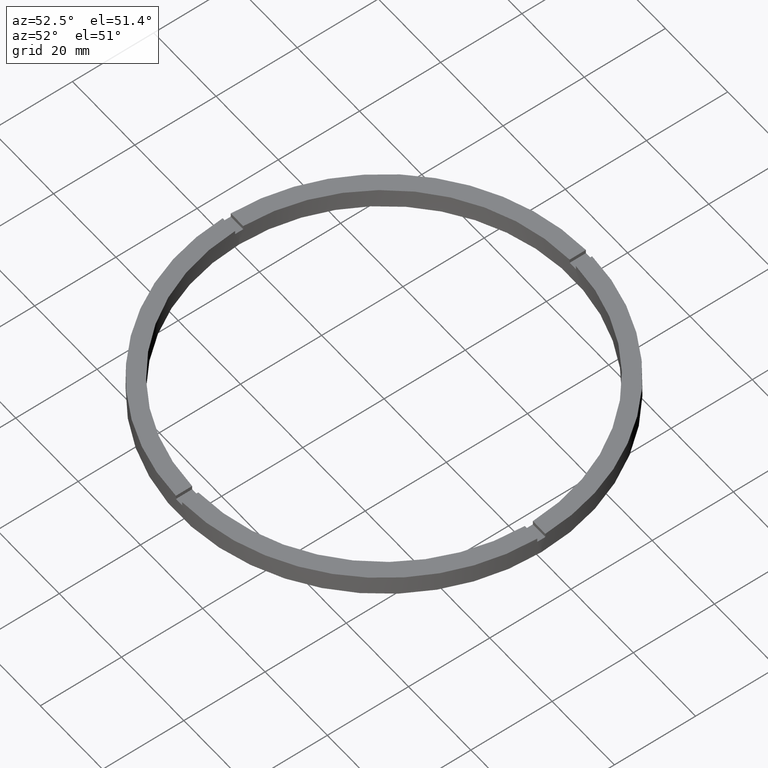
[diagram: clean part render]
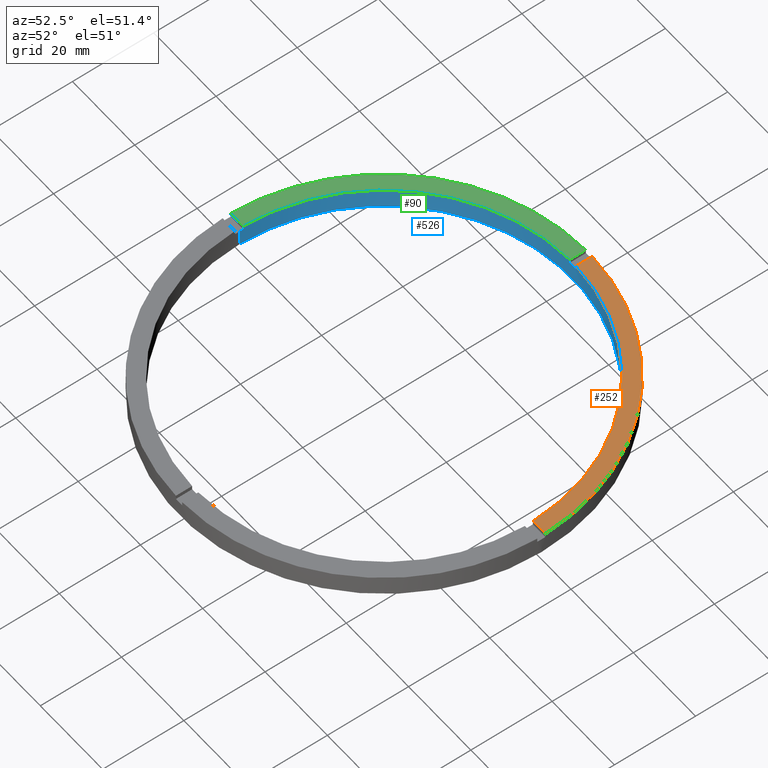
[diagram: same view with three faces highlighted in distinct colors, each labeled with its STEP entity id]
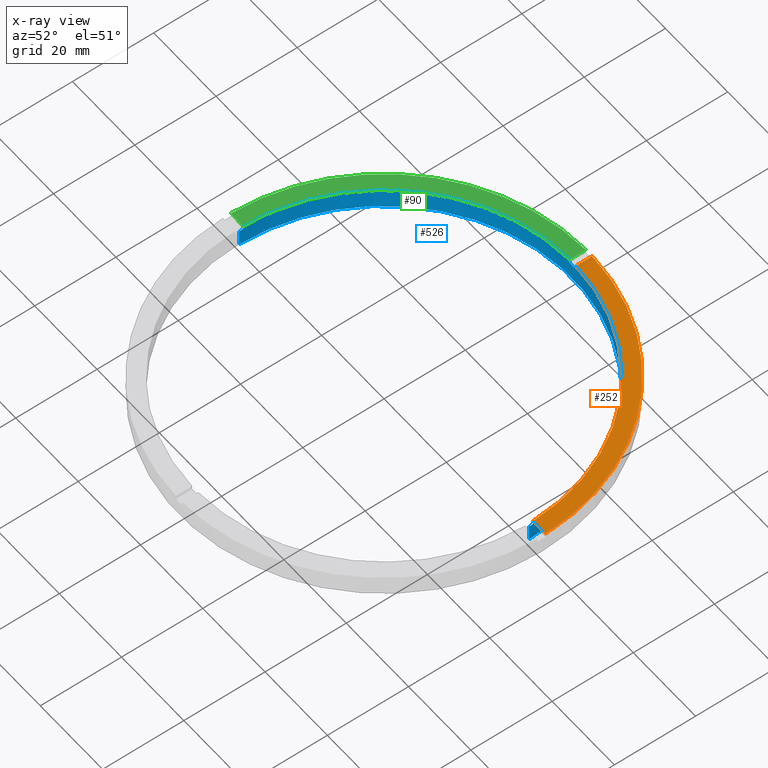
[diagram: x-ray of the same camera — body ghosted, the three highlighted faces saturated]
A machine part, auxiliary view with three faces highlighted in distinct colors.
The next image is the same camera in x-ray (body ghosted, the three faces saturated) — at least one of them is partly hidden behind the body in this view.
Their STEP definitions:

[orange] entity #252 — the highlighted planar face has unit normal (0, 0, 1).
#21 = DIRECTION ( 'NONE',  ( 1.000000000000000000, 0.000000000000000000, 0.000000000000000000 ) ) ;
#94 = ORIENTED_EDGE ( 'NONE', *, *, #696, .F. ) ;
#105 = VERTEX_POINT ( 'NONE', #408 ) ;
#115 = VERTEX_POINT ( 'NONE', #472 ) ;
#122 = CARTESIAN_POINT ( 'NONE',  ( 0.9999999999999731326, 40.50000000000000000, 5.000000000000000000 ) ) ;
#147 = DIRECTION ( 'NONE',  ( 0.000000000000000000, 0.000000000000000000, 1.000000000000000000 ) ) ;
#154 = CARTESIAN_POINT ( 'NONE',  ( 40.49999999999999289, 0.9999999999998443467, 5.000000000000000000 ) ) ;
#160 = EDGE_CURVE ( 'NONE', #105, #431, #460, .T. ) ;
#178 = VECTOR ( 'NONE', #656, 1000.000000000000000 ) ;
#199 = AXIS2_PLACEMENT_3D ( 'NONE', #668, #549, #585 ) ;
#223 = DIRECTION ( 'NONE',  ( 1.000000000000000000, 0.000000000000000000, -0.000000000000000000 ) ) ;
#224 = DIRECTION ( 'NONE',  ( -1.000000000000000000, -6.505213034913025371E-17, -0.000000000000000000 ) ) ;
#228 = LINE ( 'NONE', #154, #746 ) ;
#231 = FACE_OUTER_BOUND ( 'NONE', #395, .T. ) ;
#238 = EDGE_CURVE ( 'NONE', #105, #376, #228, .T. ) ;
#252 = ADVANCED_FACE ( 'NONE', ( #231 ), #552, .T. ) ;
#265 = EDGE_CURVE ( 'NONE', #376, #115, #756, .T. ) ;
#317 = AXIS2_PLACEMENT_3D ( 'NONE', #608, #147, #223 ) ;
#332 = AXIS2_PLACEMENT_3D ( 'NONE', #446, #762, #21 ) ;
#364 = ORIENTED_EDGE ( 'NONE', *, *, #160, .T. ) ;
#376 = VERTEX_POINT ( 'NONE', #719 ) ;
#395 = EDGE_LOOP ( 'NONE', ( #94, #636, #638, #364 ) ) ;
#408 = CARTESIAN_POINT ( 'NONE',  ( 50.49009803912051098, 0.9999999999998450129, 5.000000000000000000 ) ) ;
#431 = VERTEX_POINT ( 'NONE', #712 ) ;
#446 = CARTESIAN_POINT ( 'NONE',  ( 0.000000000000000000, 0.000000000000000000, 5.000000000000000000 ) ) ;
#460 = CIRCLE ( 'NONE', #199, 50.50000000000000000 ) ;
#472 = CARTESIAN_POINT ( 'NONE',  ( 0.9999999999999731326, 46.48924606831132422, 5.000000000000000000 ) ) ;
#549 = DIRECTION ( 'NONE',  ( 0.000000000000000000, 0.000000000000000000, 1.000000000000000000 ) ) ;
#552 = PLANE ( 'NONE',  #317 ) ;
#585 = DIRECTION ( 'NONE',  ( 1.000000000000000000, 0.000000000000000000, 0.000000000000000000 ) ) ;
#608 = CARTESIAN_POINT ( 'NONE',  ( 0.000000000000000000, 0.000000000000000000, 5.000000000000000000 ) ) ;
#636 = ORIENTED_EDGE ( 'NONE', *, *, #265, .F. ) ;
#638 = ORIENTED_EDGE ( 'NONE', *, *, #238, .F. ) ;
#656 = DIRECTION ( 'NONE',  ( 0.000000000000000000, 1.000000000000000000, 0.000000000000000000 ) ) ;
#668 = CARTESIAN_POINT ( 'NONE',  ( 0.000000000000000000, 0.000000000000000000, 5.000000000000000000 ) ) ;
#683 = LINE ( 'NONE', #122, #178 ) ;
#696 = EDGE_CURVE ( 'NONE', #115, #431, #683, .T. ) ;
#712 = CARTESIAN_POINT ( 'NONE',  ( 0.9999999999999731326, 50.49009803912050387, 5.000000000000000000 ) ) ;
#719 = CARTESIAN_POINT ( 'NONE',  ( 46.48924606831132422, 0.9999999999998447908, 5.000000000000000000 ) ) ;
#746 = VECTOR ( 'NONE', #224, 1000.000000000000000 ) ;
#756 = CIRCLE ( 'NONE', #332, 46.50000000000000000 ) ;
#762 = DIRECTION ( 'NONE',  ( 0.000000000000000000, 0.000000000000000000, 1.000000000000000000 ) ) ;

[blue] entity #526 — the highlighted cylindrical surface (partial cylindrical patch) has radius 46.5 mm, axis along (-0, -0, -1).
#3 = EDGE_CURVE ( 'NONE', #343, #644, #392, .T. ) ;
#6 = EDGE_CURVE ( 'NONE', #727, #360, #642, .T. ) ;
#7 = DIRECTION ( 'NONE',  ( 0.000000000000000000, -0.000000000000000000, 1.000000000000000000 ) ) ;
#14 = DIRECTION ( 'NONE',  ( 1.000000000000000000, 0.000000000000000000, 0.000000000000000000 ) ) ;
#21 = DIRECTION ( 'NONE',  ( 1.000000000000000000, 0.000000000000000000, 0.000000000000000000 ) ) ;
#33 = ORIENTED_EDGE ( 'NONE', *, *, #669, .F. ) ;
#39 = CARTESIAN_POINT ( 'NONE',  ( 46.50000000000000000, 5.694607616035192278E-15, 5.000000000000000000 ) ) ;
#43 = EDGE_CURVE ( 'NONE', #120, #441, #402, .T. ) ;
#49 = CARTESIAN_POINT ( 'NONE',  ( 46.48924606831132422, 0.9999999999998447908, 4.000000000000000000 ) ) ;
#52 = EDGE_CURVE ( 'NONE', #100, #346, #403, .T. ) ;
#59 = DIRECTION ( 'NONE',  ( 1.000000000000000000, 0.000000000000000000, 0.000000000000000000 ) ) ;
#70 = EDGE_CURVE ( 'NONE', #346, #441, #405, .T. ) ;
#91 = ORIENTED_EDGE ( 'NONE', *, *, #6, .T. ) ;
#100 = VERTEX_POINT ( 'NONE', #326 ) ;
#113 = ORIENTED_EDGE ( 'NONE', *, *, #508, .F. ) ;
#115 = VERTEX_POINT ( 'NONE', #472 ) ;
#117 = DIRECTION ( 'NONE',  ( 1.000000000000000000, 0.000000000000000000, 0.000000000000000000 ) ) ;
#120 = VERTEX_POINT ( 'NONE', #447 ) ;
#126 = ORIENTED_EDGE ( 'NONE', *, *, #43, .F. ) ;
#135 = DIRECTION ( 'NONE',  ( 1.000000000000000000, 0.000000000000000000, 0.000000000000000000 ) ) ;
#153 = DIRECTION ( 'NONE',  ( -0.000000000000000000, -0.000000000000000000, -1.000000000000000000 ) ) ;
#172 = LINE ( 'NONE', #536, #701 ) ;
#175 = EDGE_CURVE ( 'NONE', #371, #637, #485, .T. ) ;
#181 = CARTESIAN_POINT ( 'NONE',  ( 0.9999999999999731326, 46.48924606831132422, 5.000000000000000000 ) ) ;
#191 = CARTESIAN_POINT ( 'NONE',  ( -46.48924606831132422, 0.9999999999999690248, 5.000000000000000000 ) ) ;
#200 = CARTESIAN_POINT ( 'NONE',  ( -46.50000000000000000, 0.000000000000000000, 5.000000000000000000 ) ) ;
#234 = DIRECTION ( 'NONE',  ( -0.000000000000000000, -0.000000000000000000, -1.000000000000000000 ) ) ;
#256 = LINE ( 'NONE', #39, #763 ) ;
#261 = CARTESIAN_POINT ( 'NONE',  ( -1.000000000000026867, 46.48924606831132422, 5.000000000000000000 ) ) ;
#262 = DIRECTION ( 'NONE',  ( 0.000000000000000000, 0.000000000000000000, 1.000000000000000000 ) ) ;
#265 = EDGE_CURVE ( 'NONE', #376, #115, #756, .T. ) ;
#269 = DIRECTION ( 'NONE',  ( 0.000000000000000000, 0.000000000000000000, 1.000000000000000000 ) ) ;
#289 = CARTESIAN_POINT ( 'NONE',  ( -46.50000000000000000, 0.000000000000000000, 0.000000000000000000 ) ) ;
#294 = DIRECTION ( 'NONE',  ( 0.000000000000000000, 0.000000000000000000, 1.000000000000000000 ) ) ;
#302 = ORIENTED_EDGE ( 'NONE', *, *, #52, .T. ) ;
#326 = CARTESIAN_POINT ( 'NONE',  ( -46.48924606831132422, 0.9999999999999690248, 4.000000000000000000 ) ) ;
#332 = AXIS2_PLACEMENT_3D ( 'NONE', #446, #762, #21 ) ;
#343 = VERTEX_POINT ( 'NONE', #783 ) ;
#344 = DIRECTION ( 'NONE',  ( 0.000000000000000000, 0.000000000000000000, 1.000000000000000000 ) ) ;
#346 = VERTEX_POINT ( 'NONE', #654 ) ;
#357 = ORIENTED_EDGE ( 'NONE', *, *, #175, .T. ) ;
#358 = DIRECTION ( 'NONE',  ( -0.000000000000000000, -0.000000000000000000, -1.000000000000000000 ) ) ;
#360 = VERTEX_POINT ( 'NONE', #649 ) ;
#371 = VERTEX_POINT ( 'NONE', #261 ) ;
#373 = CARTESIAN_POINT ( 'NONE',  ( 0.000000000000000000, 0.000000000000000000, 5.000000000000000000 ) ) ;
#376 = VERTEX_POINT ( 'NONE', #719 ) ;
#387 = ORIENTED_EDGE ( 'NONE', *, *, #70, .T. ) ;
#392 = CIRCLE ( 'NONE', #420, 46.50000000000000000 ) ;
#396 = ORIENTED_EDGE ( 'NONE', *, *, #265, .T. ) ;
#402 = CIRCLE ( 'NONE', #478, 46.50000000000000000 ) ;
#403 = CIRCLE ( 'NONE', #576, 46.50000000000000000 ) ;
#405 = LINE ( 'NONE', #200, #650 ) ;
#411 = CARTESIAN_POINT ( 'NONE',  ( -1.000000000000026867, 46.48924606831132422, 5.000000000000000000 ) ) ;
#416 = CARTESIAN_POINT ( 'NONE',  ( 0.000000000000000000, 0.000000000000000000, 0.000000000000000000 ) ) ;
#418 = DIRECTION ( 'NONE',  ( 0.000000000000000000, 0.000000000000000000, 1.000000000000000000 ) ) ;
#420 = AXIS2_PLACEMENT_3D ( 'NONE', #659, #294, #135 ) ;
#421 = DIRECTION ( 'NONE',  ( 1.000000000000000000, 0.000000000000000000, 0.000000000000000000 ) ) ;
#441 = VERTEX_POINT ( 'NONE', #289 ) ;
#446 = CARTESIAN_POINT ( 'NONE',  ( 0.000000000000000000, 0.000000000000000000, 5.000000000000000000 ) ) ;
#447 = CARTESIAN_POINT ( 'NONE',  ( 46.50000000000000000, 5.694607616035192278E-15, 0.000000000000000000 ) ) ;
#450 = EDGE_CURVE ( 'NONE', #371, #360, #491, .T. ) ;
#456 = LINE ( 'NONE', #575, #709 ) ;
#464 = AXIS2_PLACEMENT_3D ( 'NONE', #373, #517, #59 ) ;
#472 = CARTESIAN_POINT ( 'NONE',  ( 0.9999999999999731326, 46.48924606831132422, 5.000000000000000000 ) ) ;
#478 = AXIS2_PLACEMENT_3D ( 'NONE', #416, #344, #14 ) ;
#483 = CARTESIAN_POINT ( 'NONE',  ( 0.000000000000000000, 0.000000000000000000, 5.000000000000000000 ) ) ;
#485 = CIRCLE ( 'NONE', #464, 46.50000000000000000 ) ;
#491 = LINE ( 'NONE', #411, #750 ) ;
#499 = FACE_OUTER_BOUND ( 'NONE', #587, .T. ) ;
#502 = CYLINDRICAL_SURFACE ( 'NONE', #597, 46.50000000000000000 ) ;
#508 = EDGE_CURVE ( 'NONE', #343, #120, #256, .T. ) ;
#509 = VECTOR ( 'NONE', #262, 1000.000000000000000 ) ;
#517 = DIRECTION ( 'NONE',  ( 0.000000000000000000, 0.000000000000000000, 1.000000000000000000 ) ) ;
#520 = AXIS2_PLACEMENT_3D ( 'NONE', #653, #7, #421 ) ;
#521 = DIRECTION ( 'NONE',  ( -0.000000000000000000, -0.000000000000000000, -1.000000000000000000 ) ) ;
#526 = ADVANCED_FACE ( 'NONE', ( #499 ), #502, .F. ) ;
#536 = CARTESIAN_POINT ( 'NONE',  ( -46.48924606831132422, 0.9999999999999690248, 5.000000000000000000 ) ) ;
#537 = CARTESIAN_POINT ( 'NONE',  ( 0.000000000000000000, 0.000000000000000000, 4.000000000000000000 ) ) ;
#541 = CARTESIAN_POINT ( 'NONE',  ( 0.9999999999999731326, 46.48924606831132422, 4.000000000000000000 ) ) ;
#555 = ORIENTED_EDGE ( 'NONE', *, *, #3, .T. ) ;
#556 = DIRECTION ( 'NONE',  ( -1.000000000000000000, 0.000000000000000000, 0.000000000000000000 ) ) ;
#569 = DIRECTION ( 'NONE',  ( -0.000000000000000000, -0.000000000000000000, -1.000000000000000000 ) ) ;
#575 = CARTESIAN_POINT ( 'NONE',  ( 46.48924606831132422, 0.9999999999998447908, 5.000000000000000000 ) ) ;
#576 = AXIS2_PLACEMENT_3D ( 'NONE', #537, #418, #117 ) ;
#587 = EDGE_LOOP ( 'NONE', ( #113, #555, #631, #396, #33, #91, #622, #357, #623, #302, #387, #126 ) ) ;
#597 = AXIS2_PLACEMENT_3D ( 'NONE', #483, #234, #556 ) ;
#622 = ORIENTED_EDGE ( 'NONE', *, *, #450, .F. ) ;
#623 = ORIENTED_EDGE ( 'NONE', *, *, #775, .F. ) ;
#631 = ORIENTED_EDGE ( 'NONE', *, *, #780, .F. ) ;
#637 = VERTEX_POINT ( 'NONE', #191 ) ;
#642 = CIRCLE ( 'NONE', #520, 46.50000000000000000 ) ;
#644 = VERTEX_POINT ( 'NONE', #49 ) ;
#649 = CARTESIAN_POINT ( 'NONE',  ( -1.000000000000026867, 46.48924606831132422, 4.000000000000000000 ) ) ;
#650 = VECTOR ( 'NONE', #358, 1000.000000000000000 ) ;
#653 = CARTESIAN_POINT ( 'NONE',  ( 0.000000000000000000, 0.000000000000000000, 4.000000000000000000 ) ) ;
#654 = CARTESIAN_POINT ( 'NONE',  ( -46.50000000000000000, 0.000000000000000000, 4.000000000000000000 ) ) ;
#659 = CARTESIAN_POINT ( 'NONE',  ( 0.000000000000000000, 0.000000000000000000, 4.000000000000000000 ) ) ;
#669 = EDGE_CURVE ( 'NONE', #727, #115, #767, .T. ) ;
#701 = VECTOR ( 'NONE', #269, 1000.000000000000000 ) ;
#709 = VECTOR ( 'NONE', #153, 1000.000000000000000 ) ;
#719 = CARTESIAN_POINT ( 'NONE',  ( 46.48924606831132422, 0.9999999999998447908, 5.000000000000000000 ) ) ;
#727 = VERTEX_POINT ( 'NONE', #541 ) ;
#750 = VECTOR ( 'NONE', #569, 1000.000000000000000 ) ;
#756 = CIRCLE ( 'NONE', #332, 46.50000000000000000 ) ;
#762 = DIRECTION ( 'NONE',  ( 0.000000000000000000, 0.000000000000000000, 1.000000000000000000 ) ) ;
#763 = VECTOR ( 'NONE', #521, 1000.000000000000000 ) ;
#767 = LINE ( 'NONE', #181, #509 ) ;
#775 = EDGE_CURVE ( 'NONE', #100, #637, #172, .T. ) ;
#780 = EDGE_CURVE ( 'NONE', #376, #644, #456, .T. ) ;
#783 = CARTESIAN_POINT ( 'NONE',  ( 46.50000000000000000, 5.694607616035192278E-15, 4.000000000000000000 ) ) ;

[green] entity #90 — the highlighted planar face has unit normal (0, 0, 1).
#40 = CARTESIAN_POINT ( 'NONE',  ( 0.000000000000000000, 0.000000000000000000, 5.000000000000000000 ) ) ;
#45 = EDGE_CURVE ( 'NONE', #601, #705, #139, .T. ) ;
#59 = DIRECTION ( 'NONE',  ( 1.000000000000000000, 0.000000000000000000, 0.000000000000000000 ) ) ;
#60 = AXIS2_PLACEMENT_3D ( 'NONE', #594, #671, #755 ) ;
#87 = ORIENTED_EDGE ( 'NONE', *, *, #45, .T. ) ;
#90 = ADVANCED_FACE ( 'NONE', ( #190 ), #710, .T. ) ;
#101 = DIRECTION ( 'NONE',  ( -0.000000000000000000, -1.000000000000000000, -0.000000000000000000 ) ) ;
#131 = ORIENTED_EDGE ( 'NONE', *, *, #531, .F. ) ;
#139 = CIRCLE ( 'NONE', #60, 50.50000000000000000 ) ;
#173 = DIRECTION ( 'NONE',  ( 0.000000000000000000, 0.000000000000000000, 1.000000000000000000 ) ) ;
#175 = EDGE_CURVE ( 'NONE', #371, #637, #485, .T. ) ;
#190 = FACE_OUTER_BOUND ( 'NONE', #607, .T. ) ;
#191 = CARTESIAN_POINT ( 'NONE',  ( -46.48924606831132422, 0.9999999999999690248, 5.000000000000000000 ) ) ;
#261 = CARTESIAN_POINT ( 'NONE',  ( -1.000000000000026867, 46.48924606831132422, 5.000000000000000000 ) ) ;
#282 = CARTESIAN_POINT ( 'NONE',  ( -40.50000000000019185, 0.9999999999999703570, 5.000000000000000000 ) ) ;
#331 = ORIENTED_EDGE ( 'NONE', *, *, #474, .F. ) ;
#371 = VERTEX_POINT ( 'NONE', #261 ) ;
#373 = CARTESIAN_POINT ( 'NONE',  ( 0.000000000000000000, 0.000000000000000000, 5.000000000000000000 ) ) ;
#407 = CARTESIAN_POINT ( 'NONE',  ( -1.000000000000026867, 50.49009803912050387, 5.000000000000000000 ) ) ;
#464 = AXIS2_PLACEMENT_3D ( 'NONE', #373, #517, #59 ) ;
#474 = EDGE_CURVE ( 'NONE', #601, #371, #759, .T. ) ;
#485 = CIRCLE ( 'NONE', #464, 46.50000000000000000 ) ;
#486 = DIRECTION ( 'NONE',  ( 1.000000000000000000, 0.000000000000000000, -0.000000000000000000 ) ) ;
#505 = VECTOR ( 'NONE', #620, 1000.000000000000000 ) ;
#511 = LINE ( 'NONE', #282, #505 ) ;
#517 = DIRECTION ( 'NONE',  ( 0.000000000000000000, 0.000000000000000000, 1.000000000000000000 ) ) ;
#531 = EDGE_CURVE ( 'NONE', #637, #705, #511, .T. ) ;
#572 = CARTESIAN_POINT ( 'NONE',  ( -50.49009803912050387, 0.9999999999999683586, 5.000000000000000000 ) ) ;
#594 = CARTESIAN_POINT ( 'NONE',  ( 0.000000000000000000, 0.000000000000000000, 5.000000000000000000 ) ) ;
#601 = VERTEX_POINT ( 'NONE', #407 ) ;
#607 = EDGE_LOOP ( 'NONE', ( #331, #87, #131, #628 ) ) ;
#620 = DIRECTION ( 'NONE',  ( -1.000000000000000000, -1.951563910473907735E-16, 0.000000000000000000 ) ) ;
#628 = ORIENTED_EDGE ( 'NONE', *, *, #175, .F. ) ;
#637 = VERTEX_POINT ( 'NONE', #191 ) ;
#647 = CARTESIAN_POINT ( 'NONE',  ( -1.000000000000026867, 40.50000000000000000, 5.000000000000000000 ) ) ;
#671 = DIRECTION ( 'NONE',  ( 0.000000000000000000, 0.000000000000000000, 1.000000000000000000 ) ) ;
#675 = AXIS2_PLACEMENT_3D ( 'NONE', #40, #173, #486 ) ;
#705 = VERTEX_POINT ( 'NONE', #572 ) ;
#710 = PLANE ( 'NONE',  #675 ) ;
#755 = DIRECTION ( 'NONE',  ( 1.000000000000000000, 0.000000000000000000, 0.000000000000000000 ) ) ;
#758 = VECTOR ( 'NONE', #101, 1000.000000000000000 ) ;
#759 = LINE ( 'NONE', #647, #758 ) ;